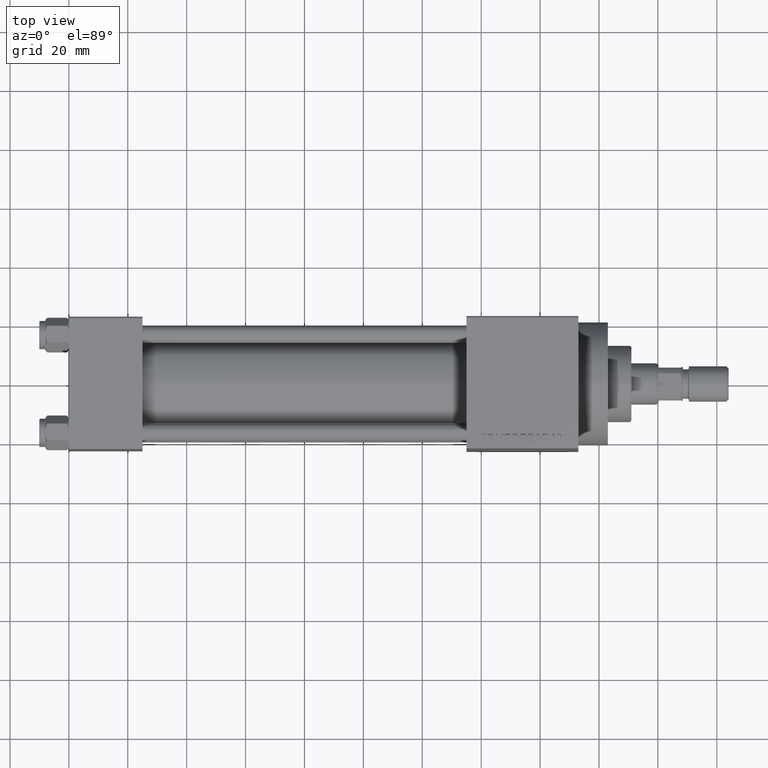
[diagram: clean part render]
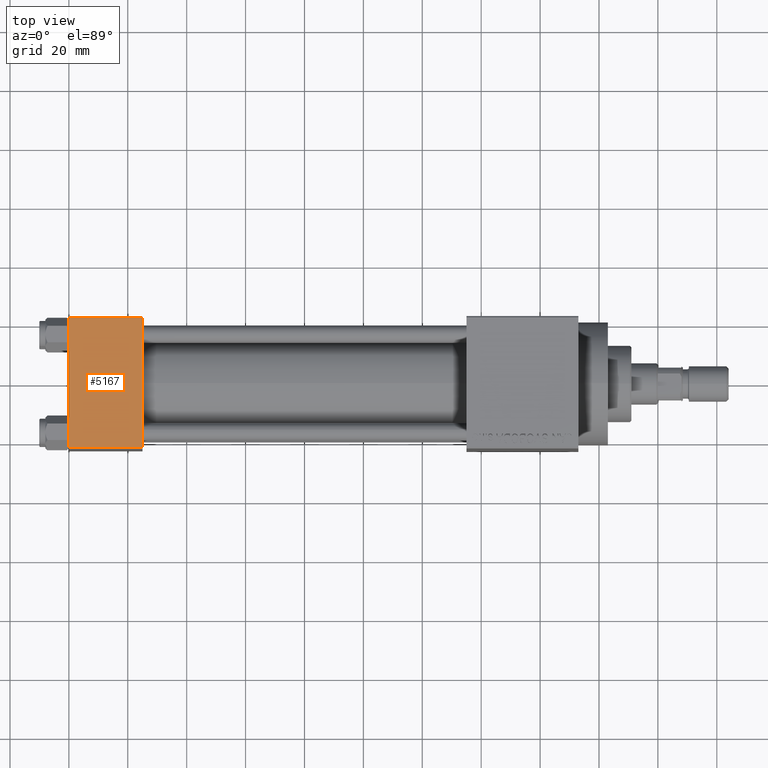
[diagram: same view with one face highlighted and labeled with its STEP entity id]
A machine part, top view. The second image highlights one B-rep face of the part: STEP entity #5167.
In plain terms, the highlighted planar face has unit normal (0, 0, -1).
Its self-contained STEP definition (entity closure, byte-faithful):
#2832 = VECTOR ( 'NONE', #27205, 1000.000000000000000 ) ;
#4161 = PLANE ( 'NONE',  #18404 ) ;
#5167 = ADVANCED_FACE ( 'NONE', ( #37281 ), #4161, .F. ) ;
#5711 = EDGE_CURVE ( 'NONE', #36286, #8703, #35980, .T. ) ;
#5748 = CARTESIAN_POINT ( 'NONE',  ( 25.00000000000000000, 21.99999999999999289, 22.50000000000000355 ) ) ;
#5930 = CARTESIAN_POINT ( 'NONE',  ( 25.00000000000000000, -21.99999999999999289, 22.50000000000000000 ) ) ;
#8703 = VERTEX_POINT ( 'NONE', #11112 ) ;
#9077 = LINE ( 'NONE', #26735, #2832 ) ;
#10418 = LINE ( 'NONE', #32435, #31597 ) ;
#11112 = CARTESIAN_POINT ( 'NONE',  ( 0.000000000000000000, -21.99999999999997868, 22.50000000000000000 ) ) ;
#11659 = DIRECTION ( 'NONE',  ( 0.000000000000000000, 1.000000000000000000, 7.709882115452476934E-17 ) ) ;
#13618 = VECTOR ( 'NONE', #20681, 1000.000000000000000 ) ;
#14012 = ORIENTED_EDGE ( 'NONE', *, *, #22446, .T. ) ;
#14647 = ORIENTED_EDGE ( 'NONE', *, *, #33341, .T. ) ;
#18404 = AXIS2_PLACEMENT_3D ( 'NONE', #18901, #18667, #11659 ) ;
#18594 = ORIENTED_EDGE ( 'NONE', *, *, #5711, .T. ) ;
#18667 = DIRECTION ( 'NONE',  ( 0.000000000000000000, 7.709882115452476934E-17, -1.000000000000000000 ) ) ;
#18901 = CARTESIAN_POINT ( 'NONE',  ( 25.00000000000000000, 22.50000000000000000, 22.50000000000000355 ) ) ;
#19559 = VERTEX_POINT ( 'NONE', #27908 ) ;
#20681 = DIRECTION ( 'NONE',  ( 1.000000000000000000, 0.000000000000000000, 0.000000000000000000 ) ) ;
#21300 = VERTEX_POINT ( 'NONE', #5748 ) ;
#21467 = CARTESIAN_POINT ( 'NONE',  ( 0.000000000000000000, 22.50000000000000000, 22.50000000000000355 ) ) ;
#22262 = EDGE_CURVE ( 'NONE', #21300, #19559, #9077, .T. ) ;
#22446 = EDGE_CURVE ( 'NONE', #8703, #19559, #42917, .T. ) ;
#24136 = ORIENTED_EDGE ( 'NONE', *, *, #22262, .F. ) ;
#25649 = EDGE_LOOP ( 'NONE', ( #18594, #14012, #24136, #14647 ) ) ;
#26735 = CARTESIAN_POINT ( 'NONE',  ( 25.00000000000000000, 22.50000000000000000, 22.50000000000000355 ) ) ;
#27205 = DIRECTION ( 'NONE',  ( 0.000000000000000000, -1.000000000000000000, -7.709882115452476934E-17 ) ) ;
#27908 = CARTESIAN_POINT ( 'NONE',  ( 25.00000000000000000, -21.99999999999997868, 22.50000000000000000 ) ) ;
#31522 = VECTOR ( 'NONE', #43465, 1000.000000000000000 ) ;
#31597 = VECTOR ( 'NONE', #32899, 1000.000000000000000 ) ;
#32435 = CARTESIAN_POINT ( 'NONE',  ( 0.000000000000000000, 21.99999999999999289, 22.50000000000000355 ) ) ;
#32899 = DIRECTION ( 'NONE',  ( -1.000000000000000000, 0.000000000000000000, 0.000000000000000000 ) ) ;
#33341 = EDGE_CURVE ( 'NONE', #21300, #36286, #10418, .T. ) ;
#35365 = CARTESIAN_POINT ( 'NONE',  ( 0.000000000000000000, 21.99999999999999289, 22.50000000000000355 ) ) ;
#35980 = LINE ( 'NONE', #21467, #31522 ) ;
#36286 = VERTEX_POINT ( 'NONE', #35365 ) ;
#37281 = FACE_OUTER_BOUND ( 'NONE', #25649, .T. ) ;
#42917 = LINE ( 'NONE', #5930, #13618 ) ;
#43465 = DIRECTION ( 'NONE',  ( 0.000000000000000000, -1.000000000000000000, -7.709882115452476934E-17 ) ) ;